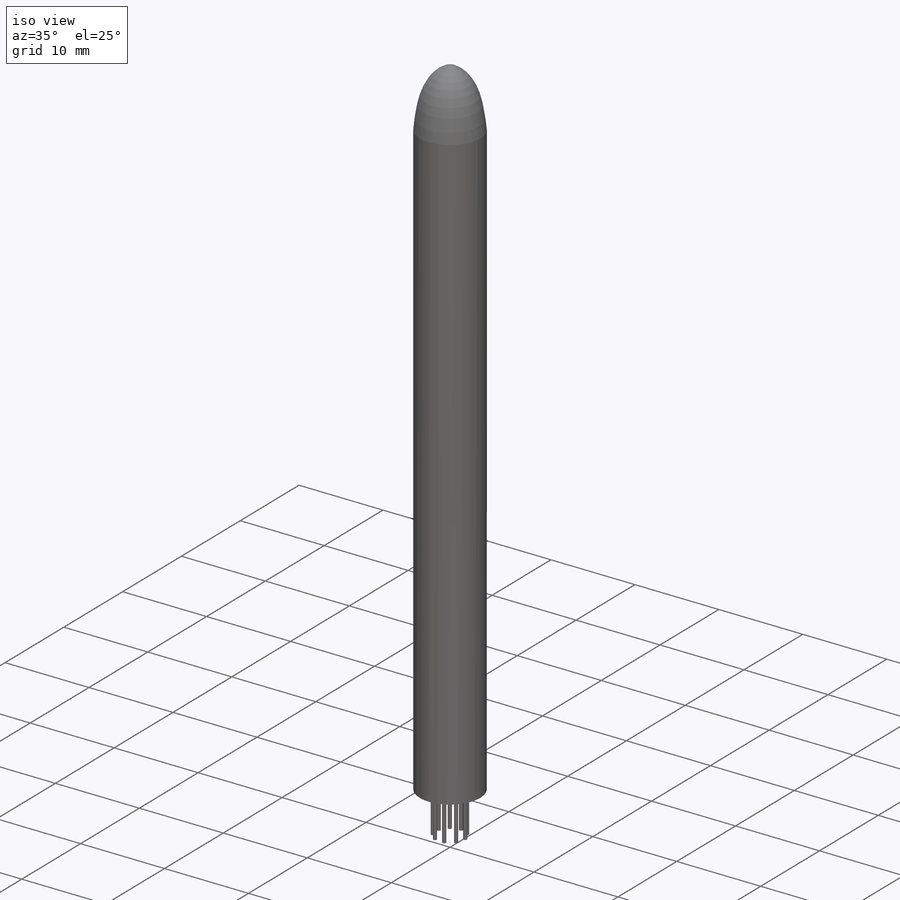
[diagram: iso view]
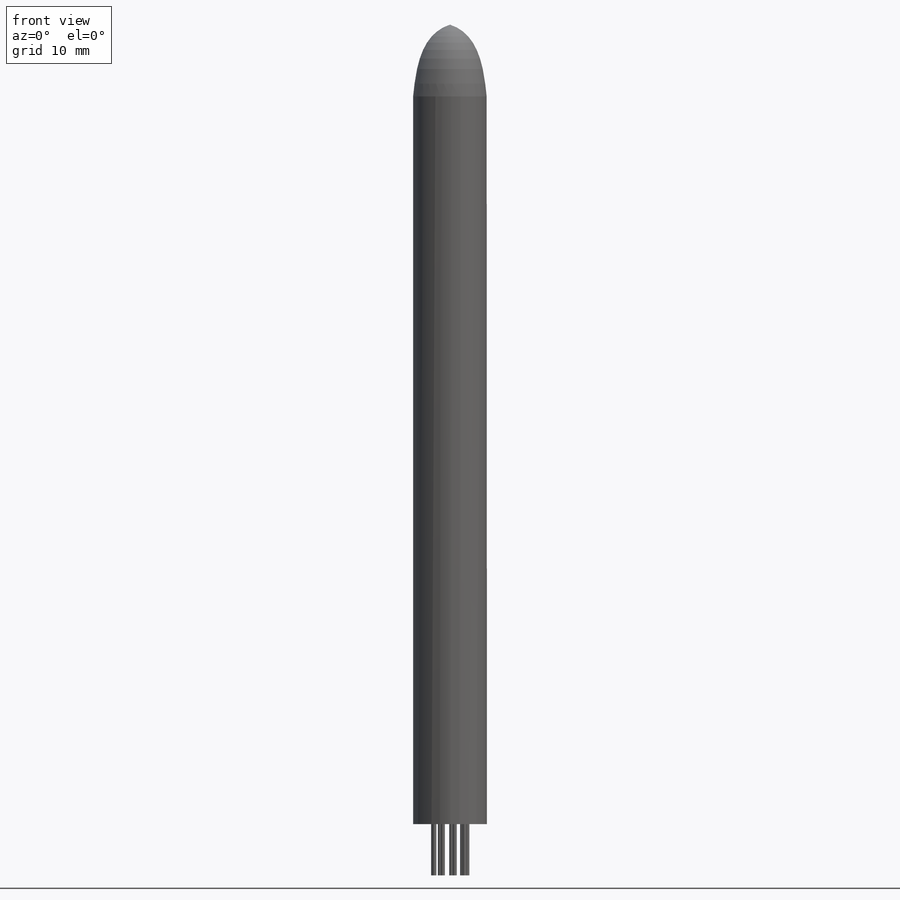
[diagram: front view]
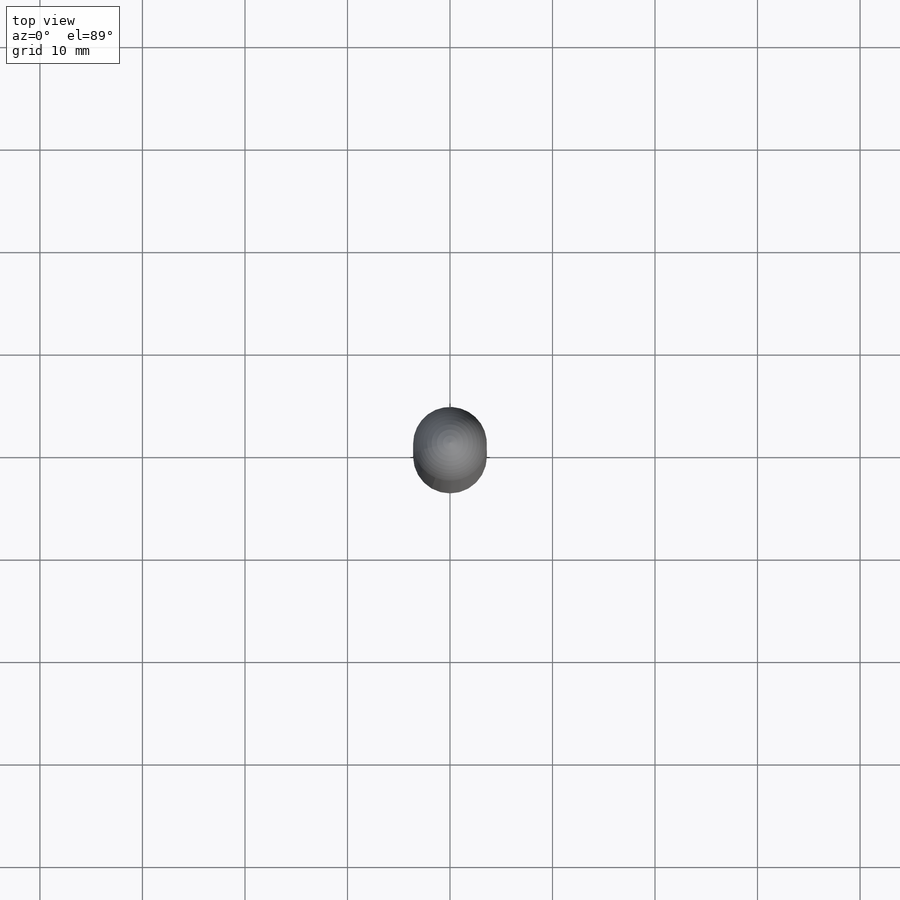
[diagram: top view]
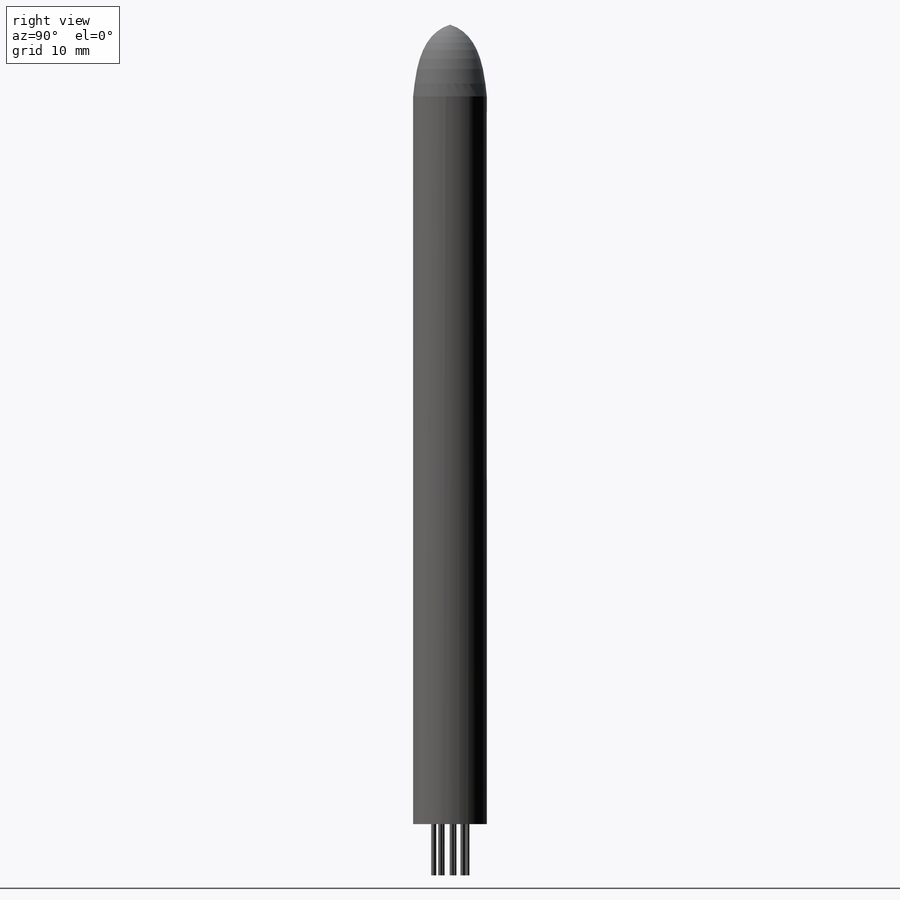
[diagram: right view]
SOLIDWORKS PART (.sldprt)
format: sldprt  version: not decoded by parser v0  size: 236,544 bytes
history: native  units: mm
features: plane x3, sketch x3, material x1, revolve x1, extrude x1, pattern_circular x1 (+9 scaffold rows collapsed)
feature tree (19):
  scaffold x9  (default folders/planes/origin — collapsed)
  material  "材质 <未指定>"
  plane  "前视基准面"
  plane  "上视基准面"
  plane  "右视基准面"
  sketch  "草图1"  dims[c1.D1=0.0mm c1.D2=3.6mm c1.D3=3.6mm c1.D4=1.0mm c1.D5=1.0mm c1.D6=0.0mm c1.D7=7.0mm c1.D8=0.0mm c2.D4=71.0mm]
  revolve  "旋转1"  Angle=360deg
  sketch  "草图2"  dims[c1.D1=~0.403807mm c1.D2=0.25mm c2.D1=1.7mm]
  extrude  "凸台-拉伸1"  Depth=5mm
  sketch  "草图4"  dims[D1=0.0mm]
  pattern_circular  "阵列(圆周)1"  Count=9  [1 undecoded]
decode coverage: 6 of 6 modeling features carry decoded parameters
note: ~ marks probable driven/reference dimensions
note: 1 parameter value undecoded
note: suppression state not decoded; provenance and decode notes live in map.json
